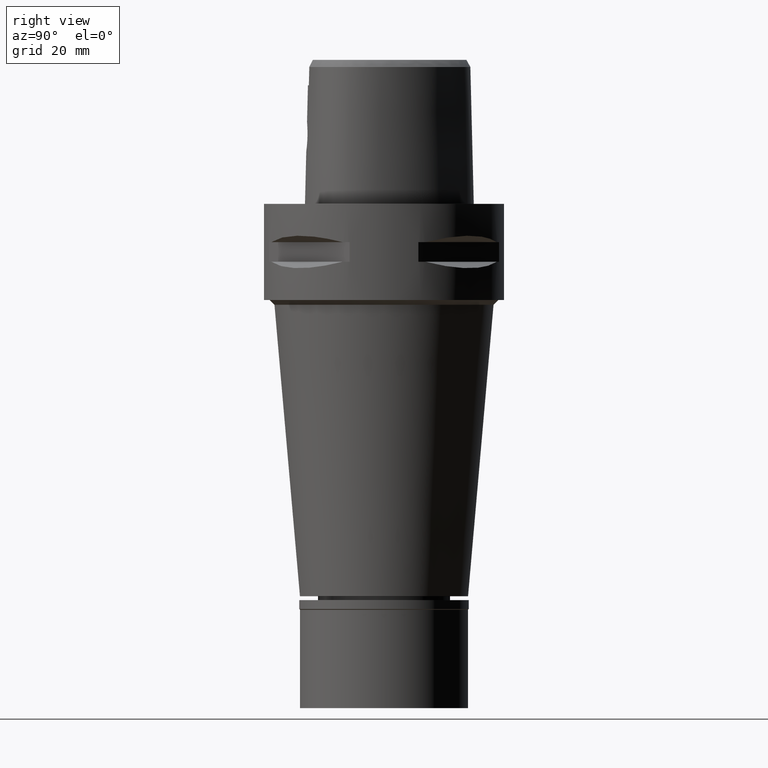
[diagram: clean part render]
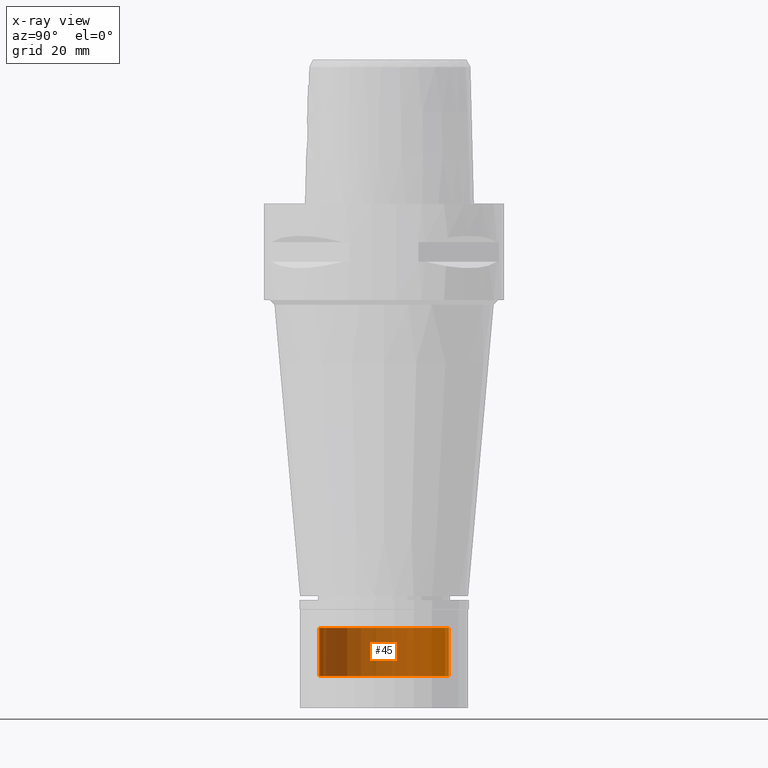
[diagram: x-ray — body ghosted, one internal face saturated and labeled with its STEP entity id]
A machine part, right view, then the same camera in x-ray: the body is ghosted and one INTERNAL B-rep face — a face not visible from any outside direction — is saturated and labeled: STEP entity #45.
In plain terms, the highlighted cylindrical surface (partial cylindrical patch) has radius 13.5 mm, axis along (0, 0, -1).
Its self-contained STEP definition (entity closure, byte-faithful):
#45 = ADVANCED_FACE ( 'NONE', ( #2857 ), #4716, .T. ) ;
#99 = LINE ( 'NONE', #3144, #2230 ) ;
#299 = CARTESIAN_POINT ( 'NONE',  ( 0.0000000000000000000, 1.284838189324999924E-14, -88.29999999999999716 ) ) ;
#465 = AXIS2_PLACEMENT_3D ( 'NONE', #4011, #2023, #3587 ) ;
#761 = CARTESIAN_POINT ( 'NONE',  ( 0.0000000000000000000, -13.50000000000000000, -88.29999999999999716 ) ) ;
#791 = CIRCLE ( 'NONE', #4704, 13.50000000000000000 ) ;
#817 = VERTEX_POINT ( 'NONE', #2922 ) ;
#861 = CARTESIAN_POINT ( 'NONE',  ( 0.0000000000000000000, 13.50000000000000000, -98.29999999999999716 ) ) ;
#872 = EDGE_CURVE ( 'NONE', #817, #1161, #4375, .T. ) ;
#1161 = VERTEX_POINT ( 'NONE', #3044 ) ;
#1164 = CARTESIAN_POINT ( 'NONE',  ( 0.0000000000000000000, -13.50000000000000000, -98.29999999999999716 ) ) ;
#1252 = DIRECTION ( 'NONE',  ( 0.0000000000000000000, 0.0000000000000000000, -1.000000000000000000 ) ) ;
#1376 = DIRECTION ( 'NONE',  ( 0.0000000000000000000, 0.0000000000000000000, 1.000000000000000000 ) ) ;
#1439 = VERTEX_POINT ( 'NONE', #1164 ) ;
#1479 = DIRECTION ( 'NONE',  ( 0.0000000000000000000, -1.000000000000000000, 0.0000000000000000000 ) ) ;
#1674 = EDGE_CURVE ( 'NONE', #3515, #1439, #791, .T. ) ;
#1961 = DIRECTION ( 'NONE',  ( 0.0000000000000000000, 0.0000000000000000000, -1.000000000000000000 ) ) ;
#2023 = DIRECTION ( 'NONE',  ( 0.0000000000000000000, 0.0000000000000000000, -1.000000000000000000 ) ) ;
#2039 = ORIENTED_EDGE ( 'NONE', *, *, #2569, .T. ) ;
#2230 = VECTOR ( 'NONE', #1252, 1000.000000000000000 ) ;
#2468 = VECTOR ( 'NONE', #1961, 1000.000000000000000 ) ;
#2569 = EDGE_CURVE ( 'NONE', #1161, #3515, #99, .T. ) ;
#2649 = LINE ( 'NONE', #761, #2468 ) ;
#2857 = FACE_OUTER_BOUND ( 'NONE', #3804, .T. ) ;
#2905 = ORIENTED_EDGE ( 'NONE', *, *, #3556, .F. ) ;
#2922 = CARTESIAN_POINT ( 'NONE',  ( 0.0000000000000000000, -13.50000000000000000, -88.29999999999999716 ) ) ;
#3044 = CARTESIAN_POINT ( 'NONE',  ( 0.0000000000000000000, 13.50000000000000000, -88.29999999999999716 ) ) ;
#3144 = CARTESIAN_POINT ( 'NONE',  ( 0.0000000000000000000, 13.50000000000000000, -88.29999999999999716 ) ) ;
#3407 = AXIS2_PLACEMENT_3D ( 'NONE', #299, #4930, #1479 ) ;
#3515 = VERTEX_POINT ( 'NONE', #861 ) ;
#3556 = EDGE_CURVE ( 'NONE', #817, #1439, #2649, .T. ) ;
#3587 = DIRECTION ( 'NONE',  ( 0.0000000000000000000, -1.000000000000000000, 0.0000000000000000000 ) ) ;
#3643 = DIRECTION ( 'NONE',  ( 0.0000000000000000000, 1.000000000000000000, 0.0000000000000000000 ) ) ;
#3804 = EDGE_LOOP ( 'NONE', ( #3870, #2905, #4105, #2039 ) ) ;
#3870 = ORIENTED_EDGE ( 'NONE', *, *, #1674, .T. ) ;
#4011 = CARTESIAN_POINT ( 'NONE',  ( 0.0000000000000000000, 1.284838189324999924E-14, 4.915000000000000036 ) ) ;
#4105 = ORIENTED_EDGE ( 'NONE', *, *, #872, .T. ) ;
#4375 = CIRCLE ( 'NONE', #3407, 13.50000000000000000 ) ;
#4700 = CARTESIAN_POINT ( 'NONE',  ( 0.0000000000000000000, 1.284838189324999924E-14, -98.29999999999999716 ) ) ;
#4704 = AXIS2_PLACEMENT_3D ( 'NONE', #4700, #1376, #3643 ) ;
#4716 = CYLINDRICAL_SURFACE ( 'NONE', #465, 13.50000000000000000 ) ;
#4930 = DIRECTION ( 'NONE',  ( 0.0000000000000000000, 0.0000000000000000000, -1.000000000000000000 ) ) ;